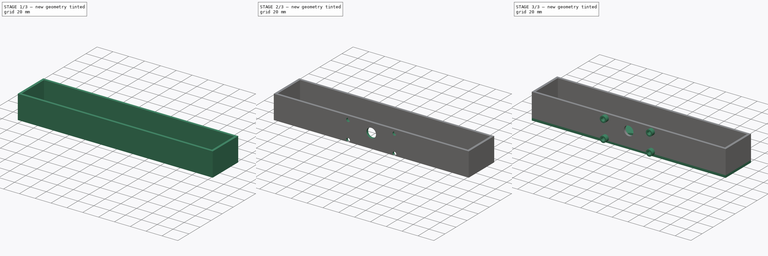
[diagram: build sequence overview — one tinted view per stage of 3, left to right]
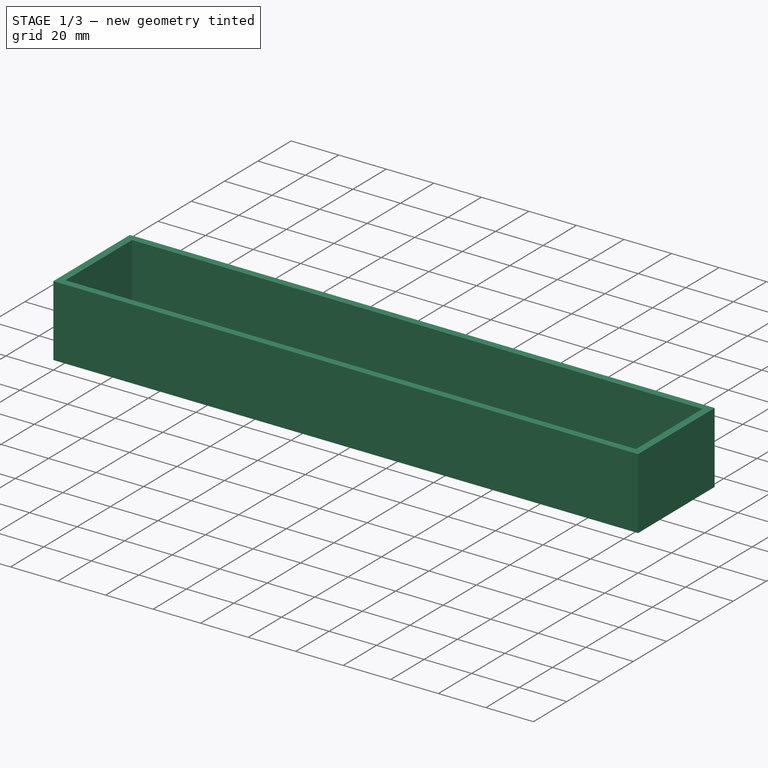
[diagram: stage 1 of 3 — iso view after this stage's code; geometry added in this stage tinted green]
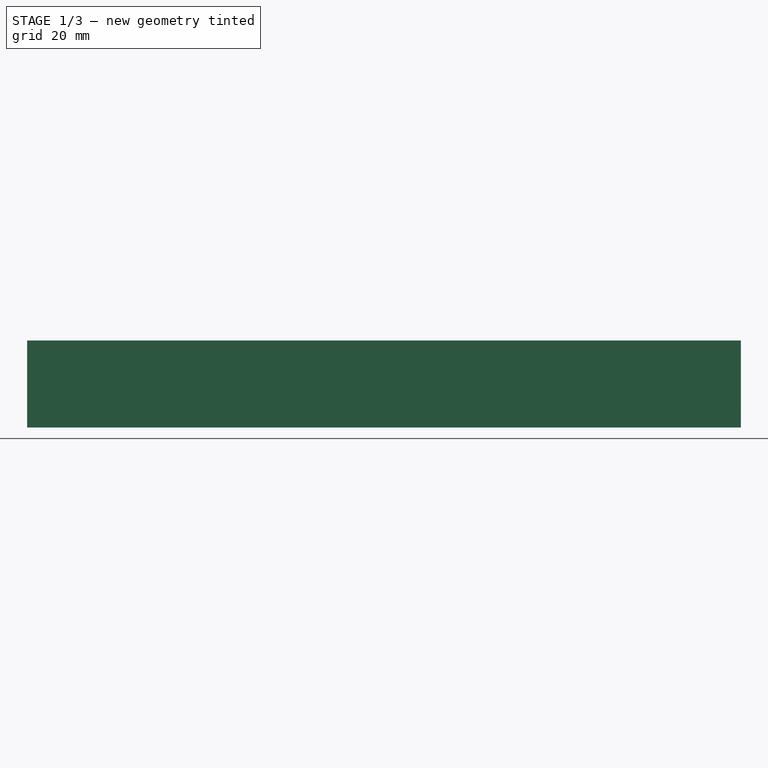
[diagram: stage 1 of 3 — front view after this stage's code; geometry added in this stage tinted green]
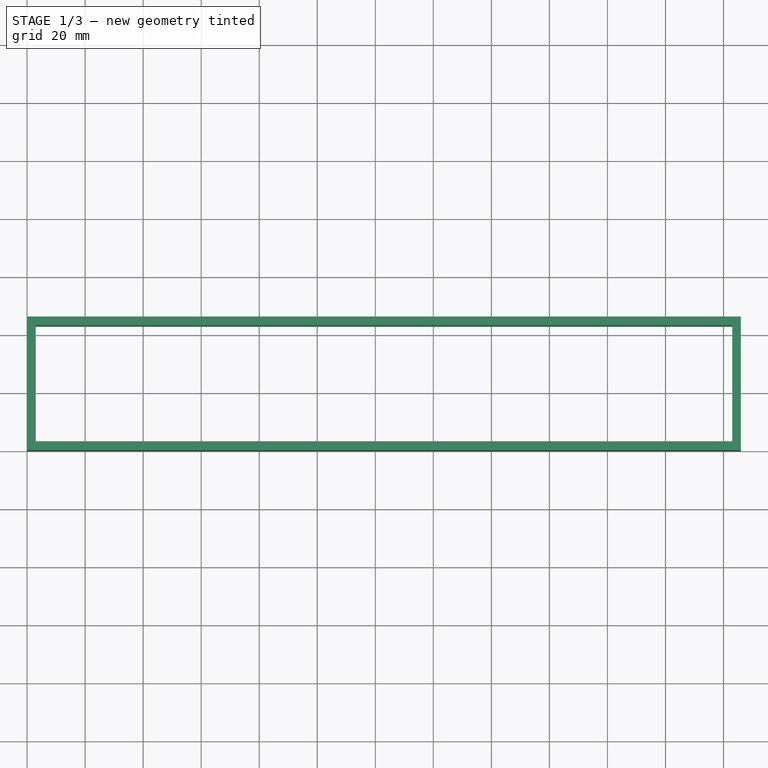
[diagram: stage 1 of 3 — top view after this stage's code; geometry added in this stage tinted green]
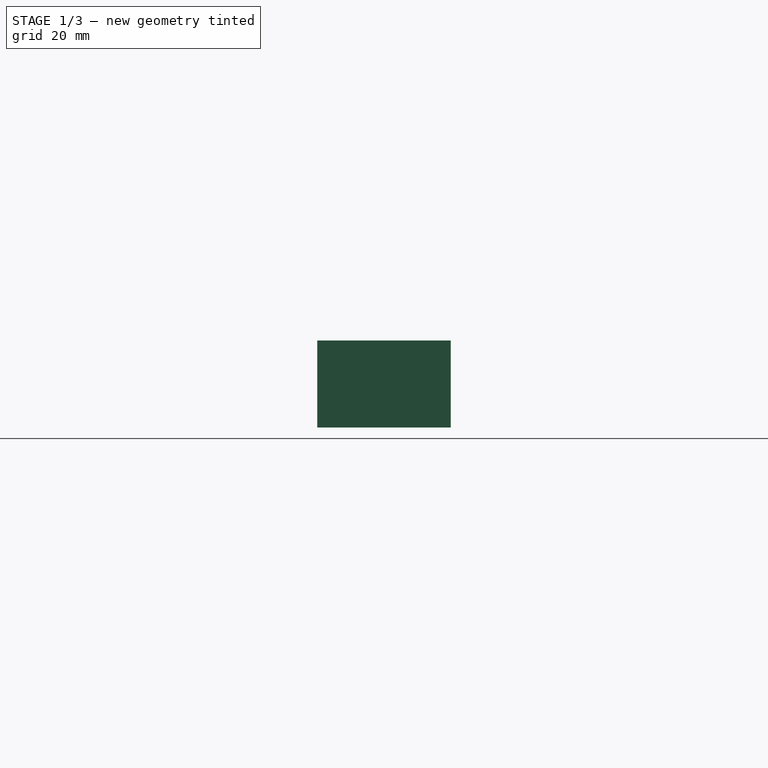
[diagram: stage 1 of 3 — right view after this stage's code; geometry added in this stage tinted green]
FCSTD DOCUMENT  (FreeCAD 0.20R29177 (Git))
Label: botoes
License: All rights reserved
LicenseURL: http://en.wikipedia.org/wiki/All_rights_reserved
objects: Sketcher::SketchObject×4, Part::Extrusion×4, Part::Cut×1, Part::MultiFuse×1
note: 10 computed .brp shape members not serialized (recipe doc carries the construction recipe); baked Part::Feature solids carry a one-line shape summary decoded from their .brp

FEATURE [Sketcher::SketchObject] Sketch
  FullyConstrained = true
  sketch-geometry (35):
    g0: LineSegment StartX=0 StartY=0 StartZ=0 EndX=246 EndY=0 EndZ=0
    g1: LineSegment StartX=246 StartY=0 StartZ=0 EndX=246 EndY=46 EndZ=0
    g2: LineSegment StartX=246 StartY=46 StartZ=0 EndX=0 EndY=46 EndZ=0
    g3: LineSegment StartX=0 StartY=46 StartZ=0 EndX=0 EndY=0 EndZ=0
    g4: Circle CenterX=12 CenterY=23 CenterZ=0 NormalX=0 NormalY=0 NormalZ=1 AngleXU=0 Radius=3.5
    g5: Circle CenterX=24 CenterY=23 CenterZ=0 NormalX=0 NormalY=0 NormalZ=1 AngleXU=0 Radius=3.5
    g6: Circle CenterX=36 CenterY=23 CenterZ=0 NormalX=0 NormalY=0 NormalZ=1 AngleXU=0 Radius=3.5
    g7: Circle CenterX=54 CenterY=23 CenterZ=0 NormalX=0 NormalY=0 NormalZ=1 AngleXU=0 Radius=6.1
    g8: Circle CenterX=72 CenterY=23 CenterZ=0 NormalX=0 NormalY=0 NormalZ=1 AngleXU=0 Radius=6.1
    g9: Circle CenterX=90 CenterY=23 CenterZ=0 NormalX=0 NormalY=0 NormalZ=1 AngleXU=0 Radius=6.1
    g10: Circle CenterX=108 CenterY=23 CenterZ=0 NormalX=0 NormalY=0 NormalZ=1 AngleXU=0 Radius=6.1
    g11: Circle CenterX=126 CenterY=23 CenterZ=0 NormalX=0 NormalY=0 NormalZ=1 AngleXU=0 Radius=6.1
    g12: Circle CenterX=144 CenterY=23 CenterZ=0 NormalX=0 NormalY=0 NormalZ=1 AngleXU=0 Radius=6.1
    g13: Circle CenterX=162 CenterY=23 CenterZ=0 NormalX=0 NormalY=0 NormalZ=1 AngleXU=0 Radius=6.1
    g14: Circle CenterX=180 CenterY=23 CenterZ=0 NormalX=0 NormalY=0 NormalZ=1 AngleXU=0 Radius=6.1
    g15: Circle CenterX=198 CenterY=23 CenterZ=0 NormalX=0 NormalY=0 NormalZ=1 AngleXU=0 Radius=3.5
    g16: Circle CenterX=210 CenterY=23 CenterZ=0 NormalX=0 NormalY=0 NormalZ=1 AngleXU=0 Radius=3.5
    g17: Circle CenterX=222 CenterY=23 CenterZ=0 NormalX=0 NormalY=0 NormalZ=1 AngleXU=0 Radius=3.5
    g18: Circle CenterX=234 CenterY=23 CenterZ=0 NormalX=0 NormalY=0 NormalZ=1 AngleXU=0 Radius=3.5
    g19: LineSegment StartX=12 StartY=23 StartZ=0 EndX=24 EndY=23 EndZ=0
    g20: LineSegment StartX=24 StartY=23 StartZ=0 EndX=36 EndY=23 EndZ=0
    g21: LineSegment StartX=36 StartY=23 StartZ=0 EndX=54 EndY=23 EndZ=0
    g22: LineSegment StartX=54 StartY=23 StartZ=0 EndX=72 EndY=23 EndZ=0
    g23: LineSegment StartX=72 StartY=23 StartZ=0 EndX=90 EndY=23 EndZ=0
    g24: LineSegment StartX=90 StartY=23 StartZ=0 EndX=108 EndY=23 EndZ=0
    g25: LineSegment StartX=108 StartY=23 StartZ=0 EndX=126 EndY=23 EndZ=0
    g26: LineSegment StartX=126 StartY=23 StartZ=0 EndX=144 EndY=23 EndZ=0
    g27: LineSegment StartX=144 StartY=23 StartZ=0 EndX=162 EndY=23 EndZ=0
    g28: LineSegment StartX=162 StartY=23 StartZ=0 EndX=180 EndY=23 EndZ=0
    g29: LineSegment StartX=180 StartY=23 StartZ=0 EndX=198 EndY=23 EndZ=0
    g30: LineSegment StartX=198 StartY=23 StartZ=0 EndX=210 EndY=23 EndZ=0
    g31: LineSegment StartX=210 StartY=23 StartZ=0 EndX=222 EndY=23 EndZ=0
    g32: LineSegment StartX=222 StartY=23 StartZ=0 EndX=234 EndY=23 EndZ=0
    g33: LineSegment StartX=12 StartY=23 StartZ=0 EndX=0 EndY=23 EndZ=0
    g34: LineSegment StartX=234 StartY=23 StartZ=0 EndX=246 EndY=23 EndZ=0
  constraints (89):
    c: Coincident(g0,g1)
    c: Coincident(g1,g2)
    c: Coincident(g2,g3)
    c: Coincident(g3,g0)
    c: Horizontal(g0)
    c: Horizontal(g2)
    c: Vertical(g1)
    c: Vertical(g3)
    c: Coincident(g0,g-1)
    c: Diameter(g4) = 7
    c: Equal(g4,g5)
    c: Equal(g5,g6)
    c: Equal(g6,g18)
    c: Equal(g18,g17)
    c: Equal(g17,g16)
    c: Equal(g16,g15)
    c: Diameter(g7) = 12.2
    c: Equal(g7,g8)
    c: Equal(g8,g9)
    c: Equal(g9,g10)
    c: Equal(g10,g11)
    c: Equal(g11,g12)
    c: Equal(g12,g13)
    c: Equal(g13,g14)
    c: Coincident(g19,g4)
    c: Coincident(g19,g5)
    c: Coincident(g20,g5)
    c: Coincident(g20,g6)
    c: Coincident(g21,g6)
    c: Coincident(g21,g7)
    c: Horizontal(g21)
    c: Coincident(g21,g22)
    c: Coincident(g22,g8)
    c: Horizontal(g22)
    c: Coincident(g22,g23)
    c: Coincident(g23,g9)
    c: Coincident(g23,g24)
    c: Coincident(g24,g10)
    c: Horizontal(g24)
    c: Coincident(g24,g25)
    c: Coincident(g25,g11)
    c: Coincident(g25,g26)
    c: Coincident(g26,g12)
    c: Coincident(g26,g27)
    c: Coincident(g27,g13)
    c: Horizontal(g27)
    c: Coincident(g27,g28)
    c: Coincident(g28,g14)
    c: Horizontal(g28)
    c: Coincident(g28,g29)
    c: Coincident(g29,g15)
    c: Coincident(g29,g30)
    c: Coincident(g30,g16)
    c: Coincident(g30,g31)
    c: Coincident(g31,g17)
    c: Coincident(g31,g32)
    c: Coincident(g32,g18)
    c: Horizontal(g32)
    c: Horizontal(g31)
    c: Horizontal(g30)
    c: Horizontal(g29)
    c: Horizontal(g26)
    c: Horizontal(g25)
    c: Horizontal(g23)
    c: Horizontal(g20)
    c: Horizontal(g19)
    c: DistanceX(g19,g19) = 12
    c: Equal(g19,g20)
    c: Equal(g20,g30)
    c: Equal(g30,g31)
    c: Equal(g31,g32)
    c: DistanceX(g22,g22) = 18
    c: Equal(g22,g21)
    c: Equal(g21,g23)
    c: Equal(g23,g24)
    c: Equal(g24,g25)
    c: Equal(g25,g26)
    c: Equal(g26,g27)
    c: Equal(g27,g28)
    c: Equal(g28,g29)
    c: DistanceY(g3,g3) = 46
    c: Coincident(g33,g4)
    c: Horizontal(g33)
    c: Equal(g19,g33)
    c: Coincident(g34,g18)
    c: PointOnObject(g34,g1)
    c: Horizontal(g34)
    c: Equal(g32,g34)
    c: Symmetric(g2,g0,g33)
FEATURE [Part::Extrusion] Extrude
  Base = -> Sketch
  Dir = (0,0,1)
  DirMode = 2
  FaceMakerClass = Part::FaceMakerBullseye
  LengthFwd = 3
  LengthRev = 0
  Solid = true
  Symmetric = false
FEATURE [Sketcher::SketchObject] Sketch001
  ExternalGeometry = -> [Extrude]
  FullyConstrained = true
  MapMode = 5
  Placement = pos=(0,0,3) rot=(0,0,1;0rad)
  Support = -> [Extrude]
  sketch-geometry (10):
    g0: LineSegment StartX=0 StartY=46 StartZ=0 EndX=246 EndY=46 EndZ=0
    g1: LineSegment StartX=246 StartY=46 StartZ=0 EndX=246 EndY=0 EndZ=0
    g2: LineSegment StartX=246 StartY=0 StartZ=0 EndX=0 EndY=0 EndZ=0
    g3: LineSegment StartX=0 StartY=0 StartZ=0 EndX=0 EndY=46 EndZ=0
    g4: LineSegment StartX=3 StartY=43 StartZ=0 EndX=243 EndY=43 EndZ=0
    g5: LineSegment StartX=243 StartY=43 StartZ=0 EndX=243 EndY=3 EndZ=0
    g6: LineSegment StartX=243 StartY=3 StartZ=0 EndX=3 EndY=3 EndZ=0
    g7: LineSegment StartX=3 StartY=3 StartZ=0 EndX=3 EndY=43 EndZ=0
    g8: LineSegment StartX=0 StartY=0 StartZ=0 EndX=3 EndY=3 EndZ=0
    g9: LineSegment StartX=246 StartY=46 StartZ=0 EndX=243 EndY=43 EndZ=0
  constraints (26):
    c: Coincident(g0,g1)
    c: Coincident(g1,g2)
    c: Coincident(g2,g3)
    c: Coincident(g3,g0)
    c: Horizontal(g0)
    c: Horizontal(g2)
    c: Vertical(g1)
    c: Vertical(g3)
    c: Coincident(g0,g-3)
    c: Coincident(g1,g-4)
    c: Coincident(g4,g5)
    c: Coincident(g5,g6)
    c: Coincident(g6,g7)
    c: Coincident(g7,g4)
    c: Horizontal(g4)
    c: Horizontal(g6)
    c: Vertical(g5)
    c: Vertical(g7)
    c: Coincident(g8,g2)
    c: Coincident(g8,g6)
    c: Coincident(g9,g0)
    c: Coincident(g9,g4)
    c: Angle(g2,g8) = 0.785398
    c: DistanceX(g8,g8) = 3
    c: Angle(g9,g1) = 0.785398
    c: DistanceX(g9,g9) = 3
FEATURE [Part::Extrusion] Extrude001
  Base = -> Sketch001
  Dir = (0,0,1)
  DirMode = 2
  FaceMakerClass = Part::FaceMakerBullseye
  LengthFwd = 30
  LengthRev = 0
  Solid = true
  Symmetric = false
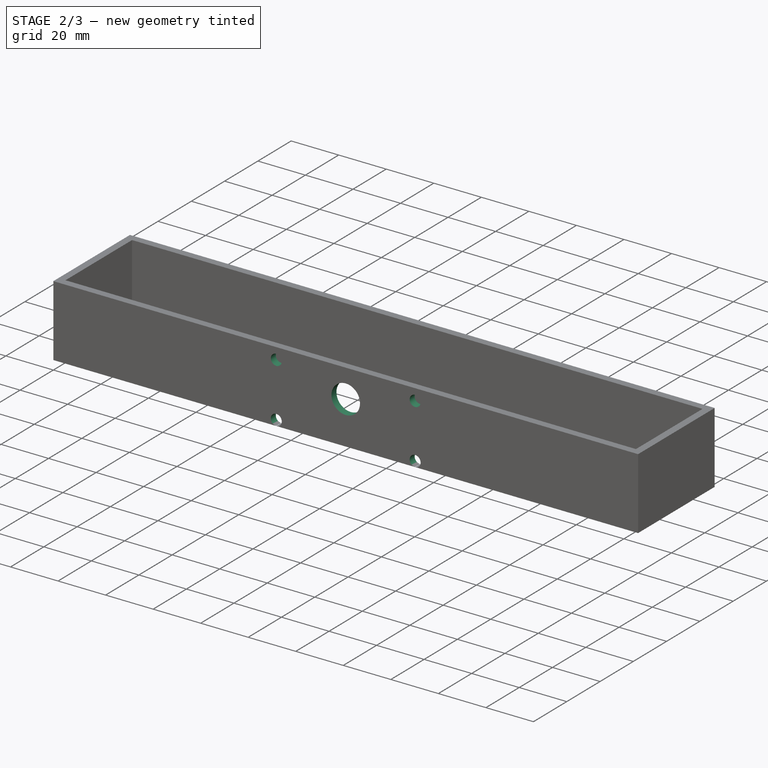
[diagram: stage 2 of 3 — iso view after this stage's code; geometry added in this stage tinted green]
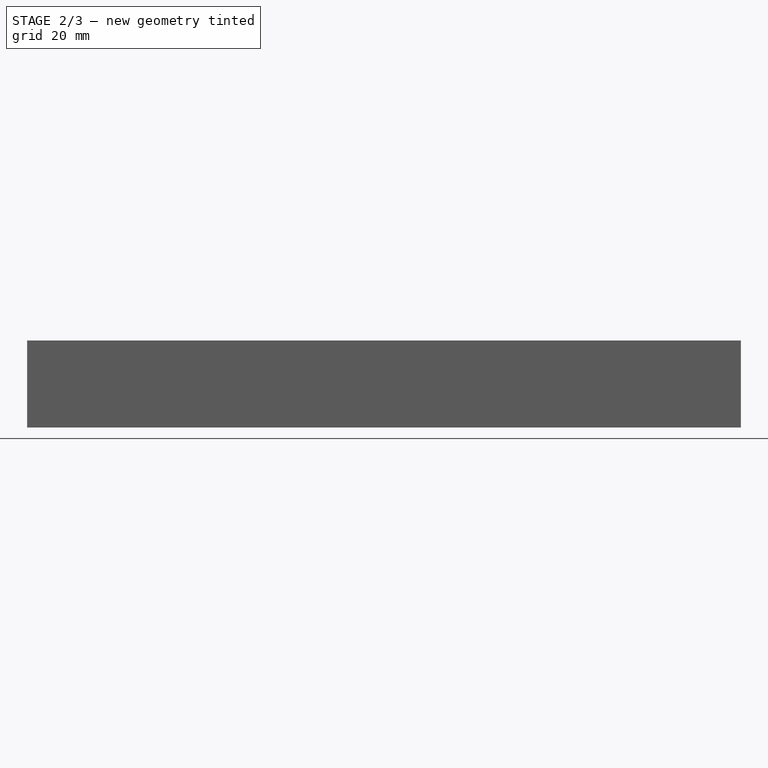
[diagram: stage 2 of 3 — front view after this stage's code; geometry added in this stage tinted green]
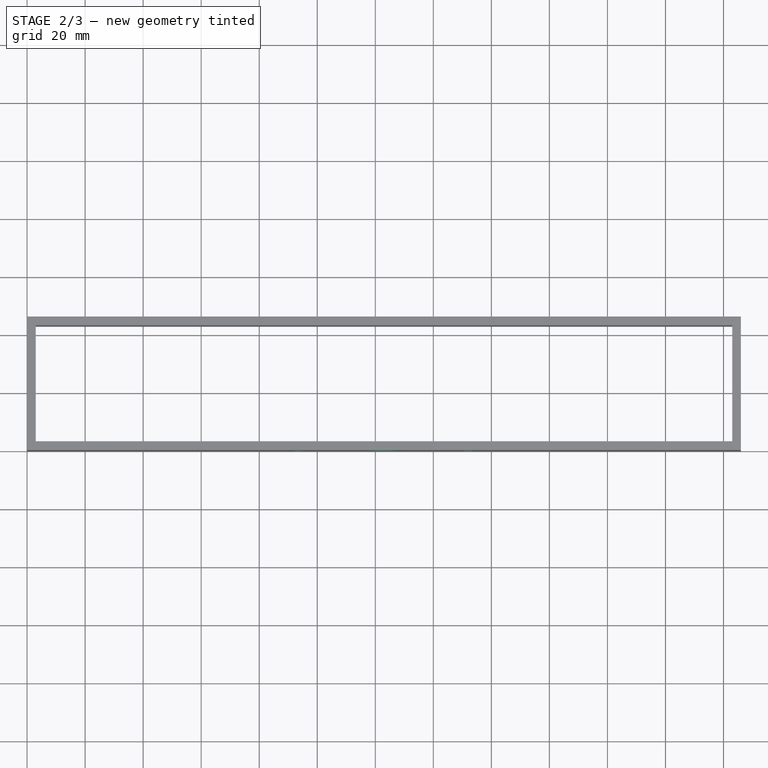
[diagram: stage 2 of 3 — top view after this stage's code; geometry added in this stage tinted green]
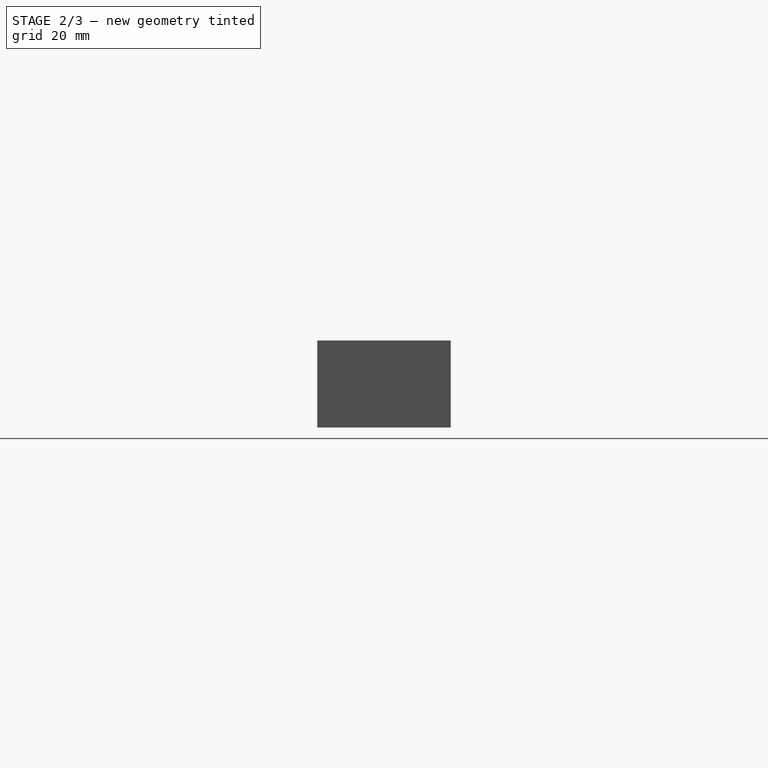
[diagram: stage 2 of 3 — right view after this stage's code; geometry added in this stage tinted green]
FEATURE [Sketcher::SketchObject] Sketch002
  ExternalGeometry = -> [Extrude001,Extrude]
  FullyConstrained = true
  MapMode = 5
  Placement = pos=(0,0,0) rot=(1,0,0;1.5708rad)
  Support = -> [Extrude001]
  sketch-geometry (11):
    g0: LineSegment StartX=123 StartY=33 StartZ=0 EndX=123 EndY=21 EndZ=0
    g1: Circle CenterX=123 CenterY=21 CenterZ=0 NormalX=0 NormalY=0 NormalZ=1 AngleXU=0 Radius=6
    g2: LineSegment StartX=93.79 StartY=28.16 StartZ=0 EndX=152.21 EndY=28.16 EndZ=0
    g3: LineSegment StartX=152.21 StartY=28.16 StartZ=0 EndX=152.21 EndY=5.3 EndZ=0
    g4: LineSegment StartX=152.21 StartY=5.3 StartZ=0 EndX=93.79 EndY=5.3 EndZ=0
    g5: LineSegment StartX=93.79 StartY=5.3 StartZ=0 EndX=93.79 EndY=28.16 EndZ=0
    g6: Circle CenterX=93.79 CenterY=28.16 CenterZ=0 NormalX=0 NormalY=0 NormalZ=1 AngleXU=0 Radius=2.3
    g7: Circle CenterX=93.79 CenterY=5.3 CenterZ=0 NormalX=0 NormalY=0 NormalZ=1 AngleXU=0 Radius=2.3
    g8: Circle CenterX=152.21 CenterY=5.3 CenterZ=0 NormalX=0 NormalY=0 NormalZ=1 AngleXU=0 Radius=2.3
    g9: Circle CenterX=152.21 CenterY=28.16 CenterZ=0 NormalX=0 NormalY=0 NormalZ=1 AngleXU=0 Radius=2.3
    g10: LineSegment StartX=123 StartY=21 StartZ=0 EndX=123 EndY=5.3 EndZ=0
  constraints (27):
    c: Coincident(g1,g0)
    c: Symmetric(g-3,g-3,g0)
    c: Diameter(g1) = 12
    c: DistanceY(g0,g0) = 12
    c: Vertical(g0)
    c: Coincident(g2,g3)
    c: Coincident(g3,g4)
    c: Coincident(g4,g5)
    c: Coincident(g5,g2)
    c: Horizontal(g2)
    c: Horizontal(g4)
    c: Vertical(g3)
    c: Vertical(g5)
    c: Coincident(g6,g2)
    c: Coincident(g7,g4)
    c: Coincident(g8,g3)
    c: Coincident(g9,g2)
    c: Diameter(g6) = 4.6
    c: Equal(g6,g7)
    c: Equal(g7,g8)
    c: Equal(g8,g9)
    c: DistanceX(g2,g2) = 58.42
    c: DistanceY(g5,g5) = 22.86
    c: Coincident(g10,g1)
    c: Vertical(g10)
    c: Symmetric(g7,g8,g10)
    c: Tangent(g7,g-4)
FEATURE [Part::Extrusion] Extrude002
  Base = -> Sketch002
  Dir = (0,-1,2e-16)
  DirMode = 2
  FaceMakerClass = Part::FaceMakerBullseye
  LengthFwd = 0
  LengthRev = 3
  Solid = true
  Symmetric = false
FEATURE [Part::Cut] Cut
  Base = -> Extrude001
  Tool = -> Extrude002
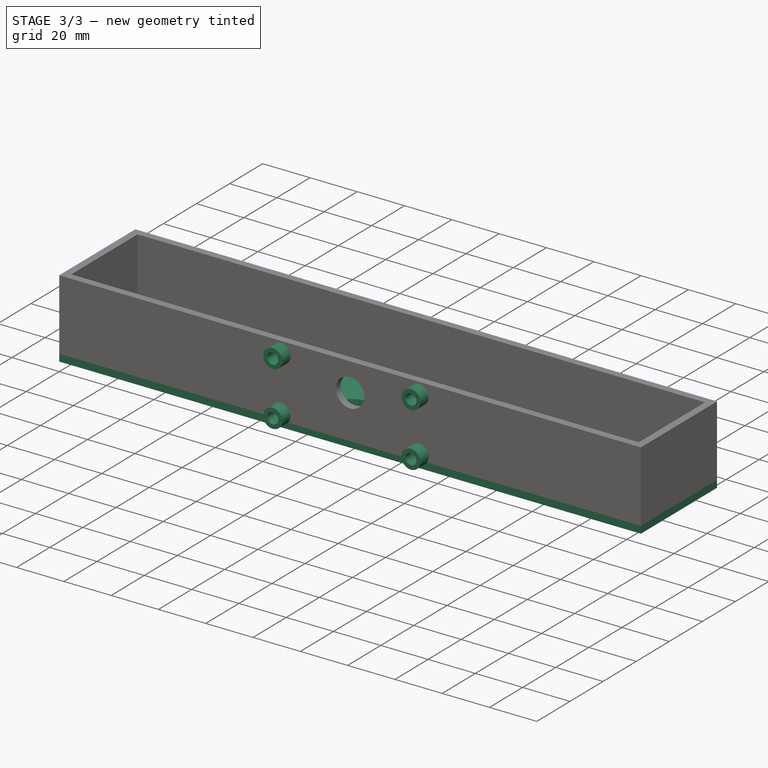
[diagram: stage 3 of 3 — iso view after this stage's code; geometry added in this stage tinted green]
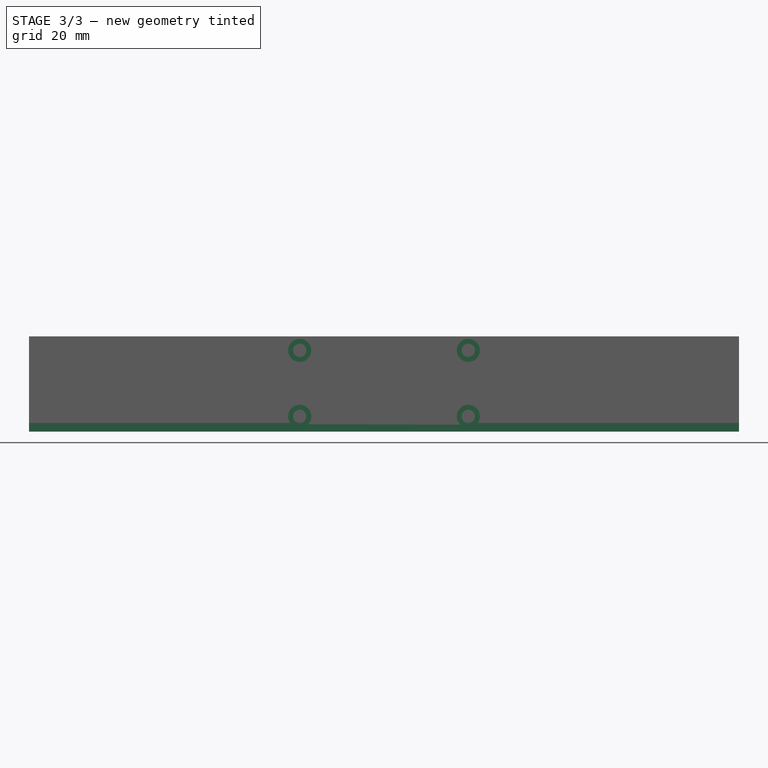
[diagram: stage 3 of 3 — front view after this stage's code; geometry added in this stage tinted green]
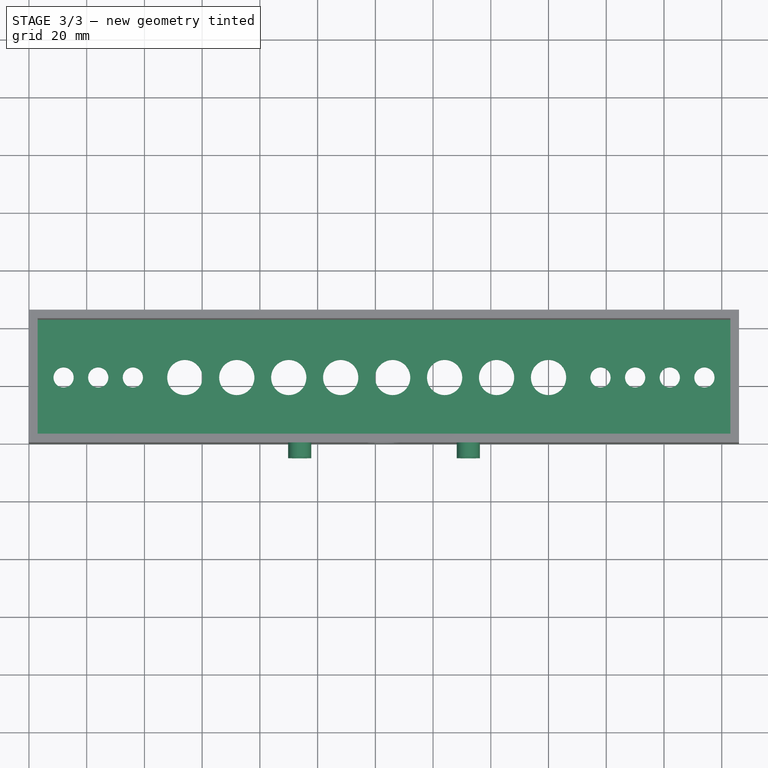
[diagram: stage 3 of 3 — top view after this stage's code; geometry added in this stage tinted green]
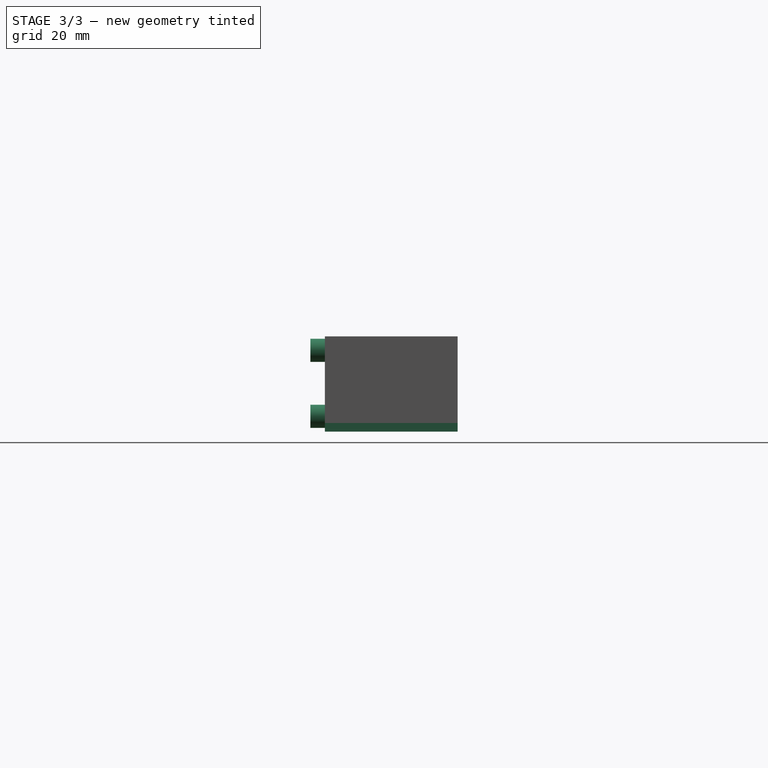
[diagram: stage 3 of 3 — right view after this stage's code; geometry added in this stage tinted green]
FEATURE [Sketcher::SketchObject] Sketch003
  ExternalGeometry = -> [Cut]
  FullyConstrained = true
  MapMode = 5
  Placement = pos=(0,0,0) rot=(1,0,0;1.5708rad)
  Support = -> [Cut]
  sketch-geometry (8):
    g0: Circle CenterX=93.79 CenterY=28.16 CenterZ=0 NormalX=0 NormalY=0 NormalZ=1 AngleXU=0 Radius=4
    g1: Circle CenterX=152.21 CenterY=28.16 CenterZ=0 NormalX=0 NormalY=0 NormalZ=1 AngleXU=0 Radius=4
    g2: Circle CenterX=152.21 CenterY=5.3 CenterZ=0 NormalX=0 NormalY=0 NormalZ=1 AngleXU=0 Radius=4
    g3: Circle CenterX=93.79 CenterY=5.3 CenterZ=0 NormalX=0 NormalY=0 NormalZ=1 AngleXU=0 Radius=4
    g4: Circle CenterX=93.79 CenterY=28.16 CenterZ=0 NormalX=0 NormalY=0 NormalZ=1 AngleXU=0 Radius=2.3
    g5: Circle CenterX=152.21 CenterY=28.16 CenterZ=0 NormalX=0 NormalY=0 NormalZ=1 AngleXU=0 Radius=2.3
    g6: Circle CenterX=152.21 CenterY=5.3 CenterZ=0 NormalX=0 NormalY=0 NormalZ=1 AngleXU=0 Radius=2.3
    g7: Circle CenterX=93.79 CenterY=5.3 CenterZ=0 NormalX=0 NormalY=0 NormalZ=1 AngleXU=0 Radius=2.3
  constraints (16):
    c: Coincident(g0,g-3)
    c: Coincident(g1,g-5)
    c: Coincident(g2,g-6)
    c: Coincident(g3,g-4)
    c: Diameter(g0) = 8
    c: Equal(g0,g1)
    c: Equal(g1,g2)
    c: Equal(g2,g3)
    c: Coincident(g4,g0)
    c: Coincident(g5,g1)
    c: Coincident(g6,g2)
    c: Coincident(g7,g3)
    c: Equal(g-3,g4)
    c: Equal(g4,g7)
    c: Equal(g7,g6)
    c: Equal(g6,g5)
FEATURE [Part::Extrusion] Extrude003
  Base = -> Sketch003
  Dir = (0,-1,2e-16)
  DirMode = 2
  FaceMakerClass = Part::FaceMakerBullseye
  LengthFwd = 5
  LengthRev = 0
  Solid = true
  Symmetric = false
FEATURE [Part::MultiFuse] Fusion
  Shapes = -> [Extrude,Cut,Extrude003]
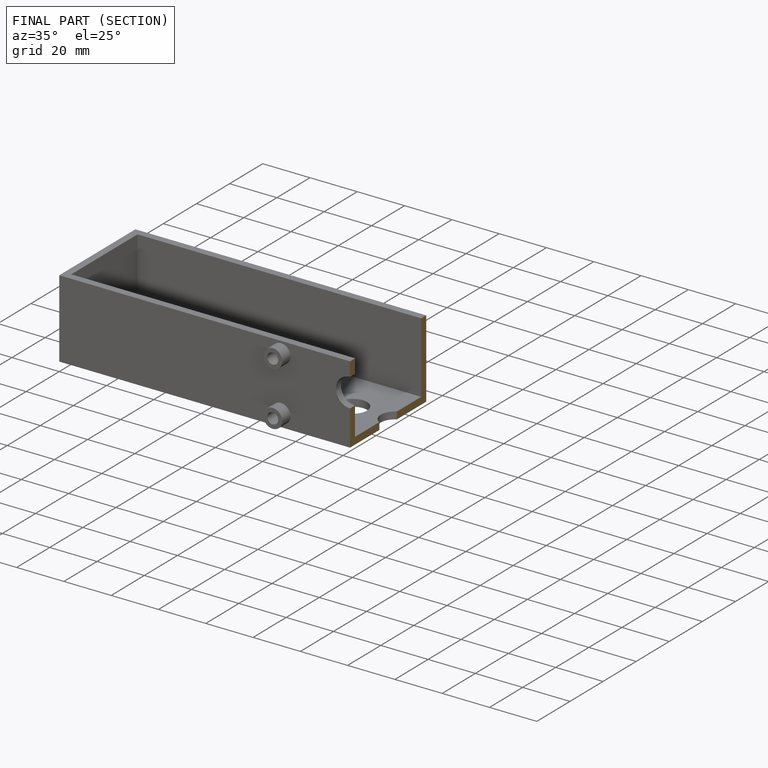
[diagram: finished part — half-section view (interior)]
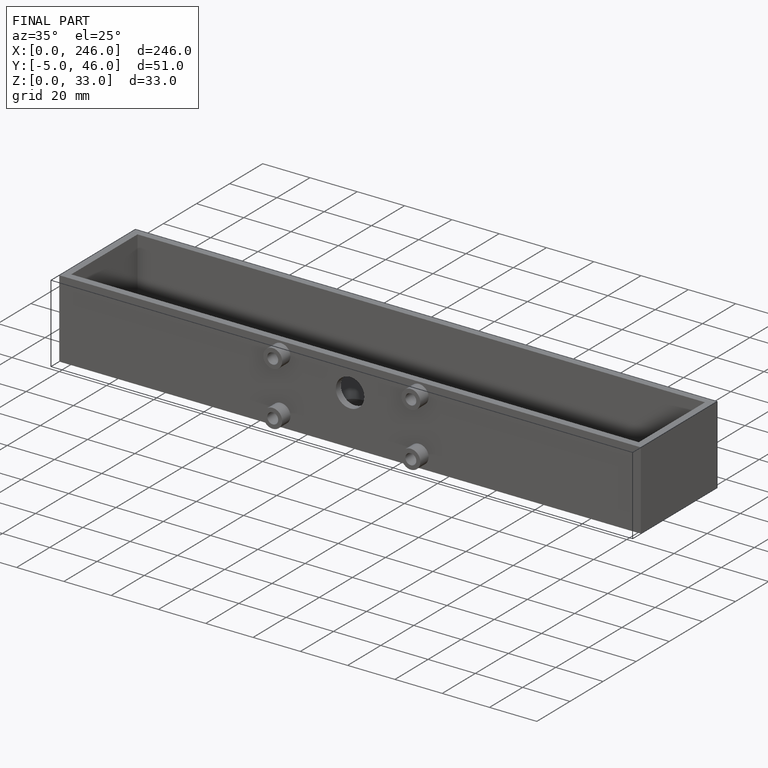
[diagram: finished part — iso view with bounding-box wireframe]
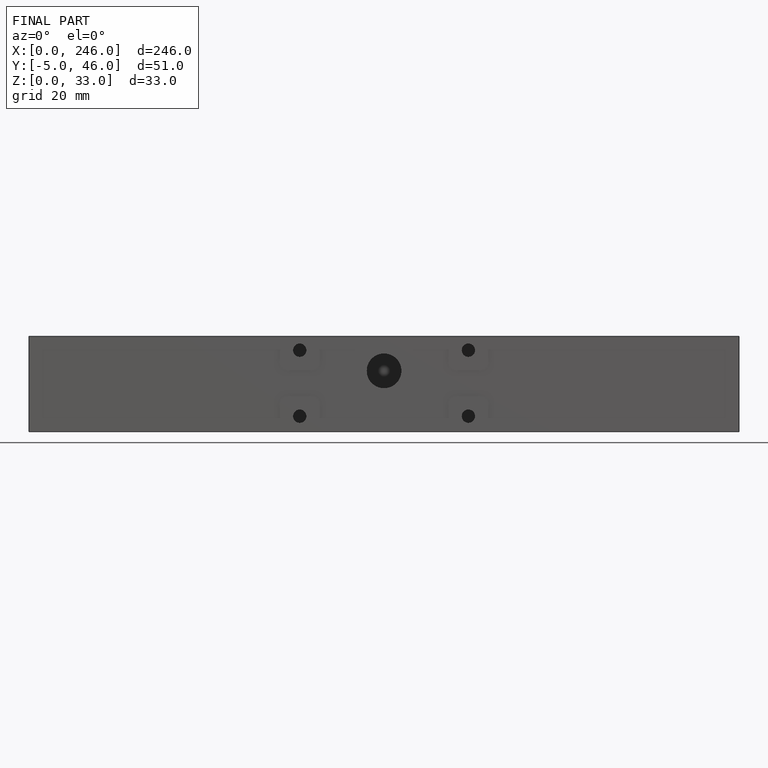
[diagram: finished part — front view with bounding-box wireframe]
